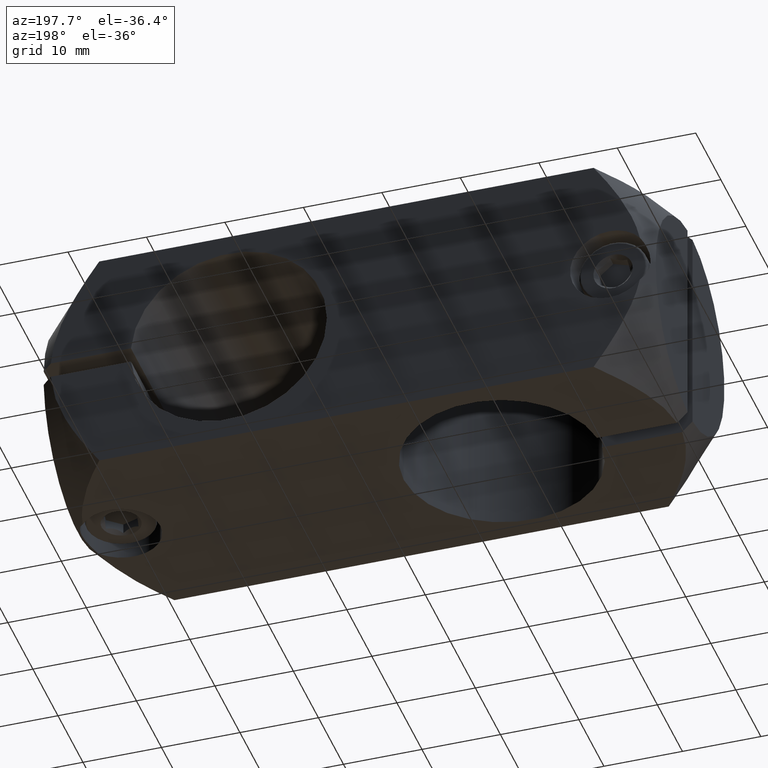
[diagram: clean part render]
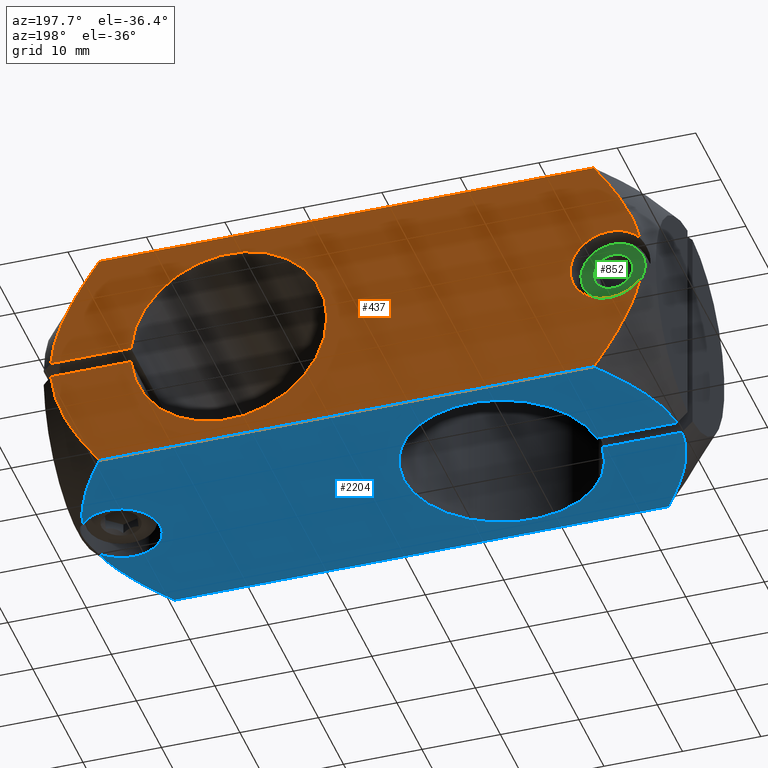
[diagram: same view with three faces highlighted in distinct colors, each labeled with its STEP entity id]
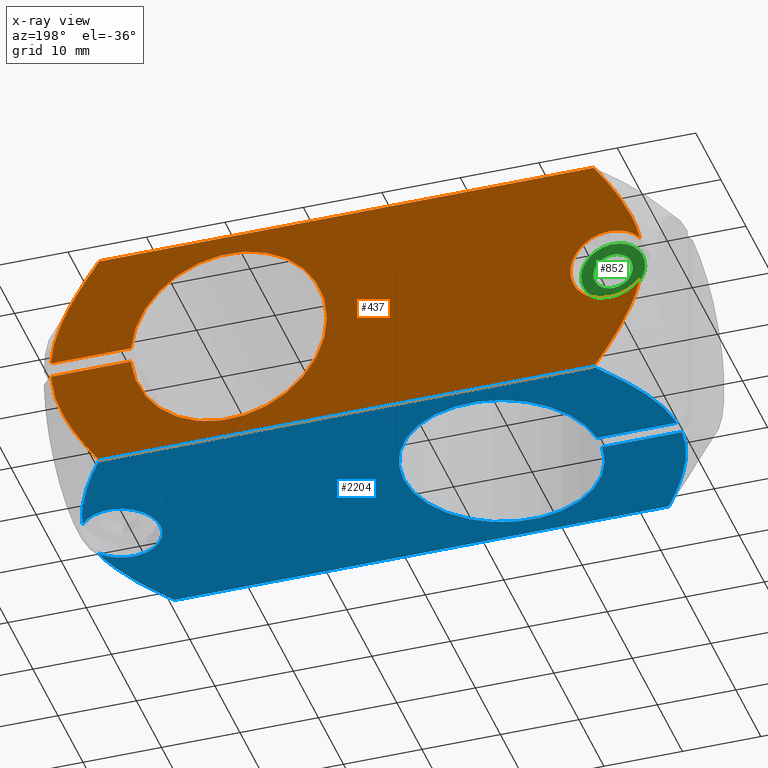
[diagram: x-ray of the same camera — body ghosted, the three highlighted faces saturated]
A machine part, auxiliary view with three faces highlighted in distinct colors.
The next image is the same camera in x-ray (body ghosted, the three faces saturated) — at least one of them is partly hidden behind the body in this view.
Their STEP definitions:

[orange] entity #437 — the highlighted planar face has unit normal (0, -1, 0).
#32 = DIRECTION ( 'NONE',  ( -1.000000000000000000, -6.938893903907225912E-17, 0.000000000000000000 ) ) ;
#40 = CARTESIAN_POINT ( 'NONE',  ( 45.85589075000393677, 6.510306479506766664, 79.16369555892572407 ) ) ;
#54 = CARTESIAN_POINT ( 'NONE',  ( 33.39595495562682004, 6.510306479506766664, 78.16369555892570986 ) ) ;
#55 = VERTEX_POINT ( 'NONE', #1941 ) ;
#76 = B_SPLINE_CURVE_WITH_KNOTS ( 'NONE', 3,
 ( #862, #625, #346, #107, #1809, #701, #1544, #1489, #1380, #2188, #2238, #307, #1720, #968, #2176, #1890 ),
 .UNSPECIFIED., .F., .F.,
 ( 4, 2, 2, 2, 2, 2, 2, 4 ),
 ( 0.04116296883264594642, 0.04502618197910741860, 0.04695778855233815469, 0.04888939512556888384, 0.05275260827203032132, 0.05468421484526102966, 0.05565001813187638730, 0.05661582141849174493 ),
 .UNSPECIFIED. ) ;
#78 = CARTESIAN_POINT ( 'NONE',  ( 54.48519777543878462, 6.510306479506767552, 70.92607441412667413 ) ) ;
#86 = CARTESIAN_POINT ( 'NONE',  ( 52.69798542986006851, 6.510306479506768440, 67.47767183124490487 ) ) ;
#99 = CARTESIAN_POINT ( 'NONE',  ( -15.10404504437317463, 6.510306479506761335, 78.16369555892570986 ) ) ;
#102 = CARTESIAN_POINT ( 'NONE',  ( 84.30742817214121487, 6.510306479506770216, 79.16369555892572407 ) ) ;
#107 = CARTESIAN_POINT ( 'NONE',  ( 52.37251348054765998, 6.510306479506768440, 89.39971300138027743 ) ) ;
#125 = CARTESIAN_POINT ( 'NONE',  ( -18.76599072099584120, 6.510306479506757782, 73.92171651542410871 ) ) ;
#142 = ORIENTED_EDGE ( 'NONE', *, *, #868, .F. ) ;
#165 = ORIENTED_EDGE ( 'NONE', *, *, #339, .T. ) ;
#175 = CARTESIAN_POINT ( 'NONE',  ( 45.85589075000393677, 6.510306479506768440, 77.16369555892570986 ) ) ;
#182 = DIRECTION ( 'NONE',  ( 8.896017825522089339E-17, -1.000000000000000000, 0.000000000000000000 ) ) ;
#250 = CARTESIAN_POINT ( 'NONE',  ( 56.07586201285034377, 6.510306479506768440, 77.16369555892570986 ) ) ;
#260 = CARTESIAN_POINT ( 'NONE',  ( 52.36903209050623786, 6.510306479506767552, 66.92189509412827420 ) ) ;
#281 = CIRCLE ( 'NONE', #2034, 12.50000000000000355 ) ;
#290 = ORIENTED_EDGE ( 'NONE', *, *, #1085, .T. ) ;
#307 = CARTESIAN_POINT ( 'NONE',  ( 55.88647056016522896, 6.510306479506765776, 80.77689576606574917 ) ) ;
#309 = LINE ( 'NONE', #1353, #938 ) ;
#313 = CARTESIAN_POINT ( 'NONE',  ( -16.37872651468642360, 6.510306479506761335, 68.31657957350795130 ) ) ;
#339 = EDGE_CURVE ( 'NONE', #1164, #2116, #1915, .T. ) ;
#346 = CARTESIAN_POINT ( 'NONE',  ( 51.35539366424504237, 6.510306479506767552, 91.04609140451289306 ) ) ;
#368 = CARTESIAN_POINT ( 'NONE',  ( -20.60404504437317286, 6.510306479506761335, 63.16369555892571697 ) ) ;
#393 = ORIENTED_EDGE ( 'NONE', *, *, #887, .F. ) ;
#410 = CARTESIAN_POINT ( 'NONE',  ( 53.63398190521613884, 6.510306479506766664, 69.18379764540695476 ) ) ;
#437 = ADVANCED_FACE ( 'NONE', ( #2216 ), #1214, .F. ) ;
#444 = EDGE_CURVE ( 'NONE', #2116, #1555, #988, .T. ) ;
#456 = CARTESIAN_POINT ( 'NONE',  ( -15.10404504437317463, 6.510306479506761335, 78.16369555892570986 ) ) ;
#457 = CARTESIAN_POINT ( 'NONE',  ( -18.43534865105120346, 6.510306479506762223, 83.46838863784014961 ) ) ;
#461 = CARTESIAN_POINT ( 'NONE',  ( -18.43678742632595302, 6.510306479506761335, 72.86351072992040656 ) ) ;
#462 = AXIS2_PLACEMENT_3D ( 'NONE', #1895, #182, #1838 ) ;
#468 = DIRECTION ( 'NONE',  ( 0.000000000000000000, 0.000000000000000000, 1.000000000000000000 ) ) ;
#469 = CARTESIAN_POINT ( 'NONE',  ( -14.36091340753621459, 6.510306479506762223, 91.34632725790081054 ) ) ;
#497 = CARTESIAN_POINT ( 'NONE',  ( -16.10551999594390438, 6.510306479506763111, 67.82836311522071071 ) ) ;
#503 = VERTEX_POINT ( 'NONE', #810 ) ;
#515 = EDGE_CURVE ( 'NONE', #1696, #55, #2180, .T. ) ;
#517 = CARTESIAN_POINT ( 'NONE',  ( -13.10404504437318707, 6.510306479506747124, 63.16369555892567433 ) ) ;
#569 = CARTESIAN_POINT ( 'NONE',  ( 20.89595495562681293, 6.510306479506765776, 78.16369555892570986 ) ) ;
#587 = VECTOR ( 'NONE', #937, 1000.000000000000000 ) ;
#611 = CARTESIAN_POINT ( 'NONE',  ( -15.10404504437317463, 6.510306479506761335, 73.16369555892570986 ) ) ;
#625 = CARTESIAN_POINT ( 'NONE',  ( 50.63806224415586144, 6.510306479506768440, 92.11419736675202330 ) ) ;
#635 = CARTESIAN_POINT ( 'NONE',  ( -13.74158508578211624, 6.510306479506759558, 92.26207778580932484 ) ) ;
#668 = CARTESIAN_POINT ( 'NONE',  ( -18.99110102534969258, 6.510306479506761335, 81.30865912004287566 ) ) ;
#675 = CARTESIAN_POINT ( 'NONE',  ( -15.54319166352470560, 6.510306479506761335, 66.86691496916786548 ) ) ;
#701 = CARTESIAN_POINT ( 'NONE',  ( 53.33429690043664806, 6.510306479506770216, 87.71177452364459270 ) ) ;
#702 = VERTEX_POINT ( 'NONE', #1799 ) ;
#775 = CARTESIAN_POINT ( 'NONE',  ( 51.35278296174561774, 6.510306479506769328, 65.27737157555318959 ) ) ;
#792 = ORIENTED_EDGE ( 'NONE', *, *, #1322, .F. ) ;
#795 = CARTESIAN_POINT ( 'NONE',  ( 49.89595495562682714, 6.510306479506768440, 63.16369555892571697 ) ) ;
#810 = CARTESIAN_POINT ( 'NONE',  ( -15.10404504437317463, 6.510306479506761335, 83.16369555892572407 ) ) ;
#822 = VECTOR ( 'NONE', #845, 1000.000000000000000 ) ;
#842 = DIRECTION ( 'NONE',  ( -0.000000000000000000, 1.000000000000000000, -0.000000000000000000 ) ) ;
#845 = DIRECTION ( 'NONE',  ( 1.000000000000000000, 6.446036833510411551E-17, -0.000000000000000000 ) ) ;
#862 = CARTESIAN_POINT ( 'NONE',  ( 49.89595495562682714, 6.510306479506772881, 93.16369555892570986 ) ) ;
#868 = EDGE_CURVE ( 'NONE', #1126, #1555, #1582, .T. ) ;
#887 = EDGE_CURVE ( 'NONE', #1370, #1642, #309, .T. ) ;
#889 = CARTESIAN_POINT ( 'NONE',  ( 49.89595495562682714, 6.510306479506772881, 93.16369555892570986 ) ) ;
#925 = CARTESIAN_POINT ( 'NONE',  ( 55.54409103327763120, 6.510306479506768440, 73.96650961431318194 ) ) ;
#937 = DIRECTION ( 'NONE',  ( -1.000000000000000000, -6.446036833510411551E-17, 0.000000000000000000 ) ) ;
#938 = VECTOR ( 'NONE', #2003, 1000.000000000000000 ) ;
#947 = CARTESIAN_POINT ( 'NONE',  ( 50.63656171396159777, 6.510306479506767552, 64.21107168094791007 ) ) ;
#968 = CARTESIAN_POINT ( 'NONE',  ( 56.02266264457779243, 6.510306479506768440, 79.80825526553879001 ) ) ;
#969 = CARTESIAN_POINT ( 'NONE',  ( -15.53883555133840666, 6.510306479506762223, 89.46769469511831119 ) ) ;
#985 = CARTESIAN_POINT ( 'NONE',  ( -15.25349678335482118, 6.510306479506761335, 66.39259783861662356 ) ) ;
#988 = B_SPLINE_CURVE_WITH_KNOTS ( 'NONE', 3,
 ( #1021, #1685, #1675, #985, #675, #497, #313, #2219, #2018, #461, #125, #1694 ),
 .UNSPECIFIED., .F., .F.,
 ( 4, 2, 2, 2, 2, 4 ),
 ( 0.04116296883264589784, 0.04448987012766948690, 0.04615332077518127796, 0.04781677142269306902, 0.05114367271771669277, 0.05447057401274032346 ),
 .UNSPECIFIED. ) ;
#993 = CARTESIAN_POINT ( 'NONE',  ( -17.63148278925583767, 6.510306479506761335, 85.53389251498363421 ) ) ;
#1002 = DIRECTION ( 'NONE',  ( -0.000000000000000000, 1.000000000000000000, -0.000000000000000000 ) ) ;
#1021 = CARTESIAN_POINT ( 'NONE',  ( -13.10404504437318707, 6.510306479506747124, 63.16369555892567433 ) ) ;
#1065 = DIRECTION ( 'NONE',  ( -1.000000000000000000, -8.896017825522088106E-17, -0.000000000000000000 ) ) ;
#1077 = DIRECTION ( 'NONE',  ( -1.000000000000000000, -6.938893903907225912E-17, 0.000000000000000000 ) ) ;
#1085 = EDGE_CURVE ( 'NONE', #1870, #1164, #1950, .T. ) ;
#1087 = DIRECTION ( 'NONE',  ( 0.000000000000000000, 0.000000000000000000, 1.000000000000000000 ) ) ;
#1102 = CARTESIAN_POINT ( 'NONE',  ( 54.97852243235129066, 6.510306479506768440, 72.11575306393393703 ) ) ;
#1103 = LINE ( 'NONE', #1778, #587 ) ;
#1120 = ORIENTED_EDGE ( 'NONE', *, *, #444, .T. ) ;
#1126 = VERTEX_POINT ( 'NONE', #611 ) ;
#1128 = AXIS2_PLACEMENT_3D ( 'NONE', #1740, #1219, #1087 ) ;
#1132 = AXIS2_PLACEMENT_3D ( 'NONE', #1244, #1927, #1077 ) ;
#1164 = VERTEX_POINT ( 'NONE', #795 ) ;
#1171 = CIRCLE ( 'NONE', #1132, 12.50000000000000355 ) ;
#1173 = EDGE_CURVE ( 'NONE', #1370, #55, #76, .T. ) ;
#1199 = ORIENTED_EDGE ( 'NONE', *, *, #515, .F. ) ;
#1207 = ORIENTED_EDGE ( 'NONE', *, *, #1211, .F. ) ;
#1211 = EDGE_CURVE ( 'NONE', #503, #1126, #1718, .T. ) ;
#1214 = PLANE ( 'NONE',  #462 ) ;
#1219 = DIRECTION ( 'NONE',  ( -0.000000000000000000, 1.000000000000000000, -0.000000000000000000 ) ) ;
#1244 = CARTESIAN_POINT ( 'NONE',  ( 33.39595495562682004, 6.510306479506766664, 78.16369555892570986 ) ) ;
#1258 = VECTOR ( 'NONE', #1065, 1000.000000000000000 ) ;
#1278 = EDGE_LOOP ( 'NONE', ( #393, #1289, #1199, #2169, #792, #2142, #290, #165, #1120, #142, #1207, #1569, #1336 ) ) ;
#1281 = VERTEX_POINT ( 'NONE', #569 ) ;
#1289 = ORIENTED_EDGE ( 'NONE', *, *, #1173, .T. ) ;
#1295 = CARTESIAN_POINT ( 'NONE',  ( 56.03309648477216598, 6.510306479506770216, 76.52078870054870663 ) ) ;
#1322 = EDGE_CURVE ( 'NONE', #1665, #1281, #281, .T. ) ;
#1336 = ORIENTED_EDGE ( 'NONE', *, *, #2228, .T. ) ;
#1353 = CARTESIAN_POINT ( 'NONE',  ( -20.60404504437317286, 6.510306479506761335, 93.16369555892570986 ) ) ;
#1359 = CARTESIAN_POINT ( 'NONE',  ( -15.24945766769410405, 6.510306479506762223, 89.94131262298397189 ) ) ;
#1370 = VERTEX_POINT ( 'NONE', #889 ) ;
#1378 = EDGE_CURVE ( 'NONE', #1281, #1696, #1171, .T. ) ;
#1380 = CARTESIAN_POINT ( 'NONE',  ( 54.97905242654898927, 6.510306479506768440, 84.20970320086311744 ) ) ;
#1420 = CIRCLE ( 'NONE', #1128, 5.000000000000004441 ) ;
#1441 = CARTESIAN_POINT ( 'NONE',  ( 49.89595495562682714, 6.510306479506768440, 63.16369555892571697 ) ) ;
#1449 = B_SPLINE_CURVE_WITH_KNOTS ( 'NONE', 3,
 ( #668, #2163, #457, #993, #2177, #2025, #1859, #969, #1359, #469, #635, #1691 ),
 .UNSPECIFIED., .F., .F.,
 ( 4, 2, 2, 2, 2, 4 ),
 ( 0.06076437033314729258, 0.06408725333673301328, 0.06741013634031872703, 0.06907157784211158391, 0.07073301934390444079, 0.07405590234749016842 ),
 .UNSPECIFIED. ) ;
#1489 = CARTESIAN_POINT ( 'NONE',  ( 54.48679692087270610, 6.510306479506767552, 85.39749089162594942 ) ) ;
#1523 = DIRECTION ( 'NONE',  ( 0.000000000000000000, 0.000000000000000000, 1.000000000000000000 ) ) ;
#1544 = CARTESIAN_POINT ( 'NONE',  ( 53.63702362177380678, 6.510306479506767552, 87.13764212205526860 ) ) ;
#1555 = VERTEX_POINT ( 'NONE', #1686 ) ;
#1569 = ORIENTED_EDGE ( 'NONE', *, *, #1753, .F. ) ;
#1582 = CIRCLE ( 'NONE', #1903, 5.000000000000004441 ) ;
#1641 = CARTESIAN_POINT ( 'NONE',  ( 56.07586201285034377, 6.510306479506768440, 77.16369555892570986 ) ) ;
#1642 = VERTEX_POINT ( 'NONE', #1877 ) ;
#1665 = VERTEX_POINT ( 'NONE', #175 ) ;
#1675 = CARTESIAN_POINT ( 'NONE',  ( -14.36369766112790991, 6.510306479506764887, 64.98520393645139848 ) ) ;
#1685 = CARTESIAN_POINT ( 'NONE',  ( -13.74312904146382941, 6.510306479506763111, 64.06749681510690664 ) ) ;
#1686 = CARTESIAN_POINT ( 'NONE',  ( -18.99110102534962863, 6.510306479506757782, 75.01873199780848722 ) ) ;
#1691 = CARTESIAN_POINT ( 'NONE',  ( -13.10404504437319417, 6.510306479506788868, 93.16369555892569565 ) ) ;
#1694 = CARTESIAN_POINT ( 'NONE',  ( -18.99110102534962863, 6.510306479506757782, 75.01873199780848722 ) ) ;
#1696 = VERTEX_POINT ( 'NONE', #40 ) ;
#1718 = CIRCLE ( 'NONE', #1825, 5.000000000000004441 ) ;
#1720 = CARTESIAN_POINT ( 'NONE',  ( 55.93880914486299361, 6.510306479506767552, 80.45317562470633277 ) ) ;
#1740 = CARTESIAN_POINT ( 'NONE',  ( -15.10404504437317463, 6.510306479506761335, 78.16369555892570986 ) ) ;
#1753 = EDGE_CURVE ( 'NONE', #702, #503, #1420, .T. ) ;
#1777 = CARTESIAN_POINT ( 'NONE',  ( 53.33063826799010343, 6.510306479506767552, 68.60882292411099570 ) ) ;
#1778 = CARTESIAN_POINT ( 'NONE',  ( 84.30742817214121487, 6.510306479506770216, 77.16369555892570986 ) ) ;
#1799 = CARTESIAN_POINT ( 'NONE',  ( -18.99110102534969258, 6.510306479506761335, 81.30865912004287566 ) ) ;
#1809 = CARTESIAN_POINT ( 'NONE',  ( 52.70162410621977500, 6.510306479506766664, 88.84346284821792494 ) ) ;
#1825 = AXIS2_PLACEMENT_3D ( 'NONE', #456, #1002, #468 ) ;
#1838 = DIRECTION ( 'NONE',  ( 1.000000000000000000, 8.896017825522089339E-17, 0.000000000000000000 ) ) ;
#1859 = CARTESIAN_POINT ( 'NONE',  ( -16.10075792261363858, 6.510306479506760446, 88.50739569858066602 ) ) ;
#1870 = VERTEX_POINT ( 'NONE', #1641 ) ;
#1877 = CARTESIAN_POINT ( 'NONE',  ( -13.10404504437319417, 6.510306479506788868, 93.16369555892569565 ) ) ;
#1890 = CARTESIAN_POINT ( 'NONE',  ( 56.07586201285034377, 6.510306479506768440, 79.16369555892572407 ) ) ;
#1895 = CARTESIAN_POINT ( 'NONE',  ( -20.60404504437317286, 6.510306479506761335, 93.16369555892570986 ) ) ;
#1903 = AXIS2_PLACEMENT_3D ( 'NONE', #99, #842, #1523 ) ;
#1915 = LINE ( 'NONE', #368, #1258 ) ;
#1927 = DIRECTION ( 'NONE',  ( -8.896017825522089339E-17, 1.000000000000000000, 0.000000000000000000 ) ) ;
#1941 = CARTESIAN_POINT ( 'NONE',  ( 56.07586201285034377, 6.510306479506768440, 79.16369555892572407 ) ) ;
#1950 = B_SPLINE_CURVE_WITH_KNOTS ( 'NONE', 3,
 ( #250, #1295, #2103, #2137, #925, #1102, #78, #410, #1777, #86, #260, #775, #947, #1441 ),
 .UNSPECIFIED., .F., .F.,
 ( 4, 2, 2, 2, 2, 2, 4 ),
 ( 0.05861561970000152277, 0.06054565503093758960, 0.06247569036187365643, 0.06633576102374583172, 0.06826579635468191243, 0.07019583168561799313, 0.07405590234749019618 ),
 .UNSPECIFIED. ) ;
#2003 = DIRECTION ( 'NONE',  ( -1.000000000000000000, -8.896017825522088106E-17, -0.000000000000000000 ) ) ;
#2018 = CARTESIAN_POINT ( 'NONE',  ( -17.63460154936985802, 6.510306479506762223, 70.80070536768043610 ) ) ;
#2025 = CARTESIAN_POINT ( 'NONE',  ( -16.37381883603491417, 6.510306479506763111, 88.01975492126672407 ) ) ;
#2034 = AXIS2_PLACEMENT_3D ( 'NONE', #54, #2089, #32 ) ;
#2089 = DIRECTION ( 'NONE',  ( -8.896017825522089339E-17, 1.000000000000000000, 0.000000000000000000 ) ) ;
#2103 = CARTESIAN_POINT ( 'NONE',  ( 55.94912806119823045, 6.510306479506768440, 75.87823096940428513 ) ) ;
#2116 = VERTEX_POINT ( 'NONE', #517 ) ;
#2137 = CARTESIAN_POINT ( 'NONE',  ( 55.70325763255742402, 6.510306479506768440, 74.59457704470717943 ) ) ;
#2142 = ORIENTED_EDGE ( 'NONE', *, *, #2203, .F. ) ;
#2163 = CARTESIAN_POINT ( 'NONE',  ( -18.76544092376863304, 6.510306479506762223, 82.40835389368490382 ) ) ;
#2169 = ORIENTED_EDGE ( 'NONE', *, *, #1378, .F. ) ;
#2176 = CARTESIAN_POINT ( 'NONE',  ( 56.05442831885576993, 6.510306479506769328, 79.48591463322942730 ) ) ;
#2177 = CARTESIAN_POINT ( 'NONE',  ( -17.15768365806060913, 6.510306479506763111, 86.53935194788502372 ) ) ;
#2180 = LINE ( 'NONE', #102, #822 ) ;
#2188 = CARTESIAN_POINT ( 'NONE',  ( 55.54342968818577475, 6.510306479506769328, 82.36314582655019478 ) ) ;
#2203 = EDGE_CURVE ( 'NONE', #1870, #1665, #1103, .T. ) ;
#2216 = FACE_OUTER_BOUND ( 'NONE', #1278, .T. ) ;
#2219 = CARTESIAN_POINT ( 'NONE',  ( -17.16160804702820286, 6.510306479506761335, 69.79610986234257552 ) ) ;
#2228 = EDGE_CURVE ( 'NONE', #702, #1642, #1449, .T. ) ;
#2238 = CARTESIAN_POINT ( 'NONE',  ( 55.70227459993387953, 6.510306479506767552, 81.73670972644727328 ) ) ;

[blue] entity #2204 — the highlighted planar face has unit normal (-0, 0, 1).
#5 = CARTESIAN_POINT ( 'NONE',  ( 46.89595495562682714, -8.489693520493242218, 63.16369555892571697 ) ) ;
#46 = VERTEX_POINT ( 'NONE', #1568 ) ;
#60 = EDGE_CURVE ( 'NONE', #736, #555, #1269, .T. ) ;
#68 = CARTESIAN_POINT ( 'NONE',  ( -18.18662102592009333, -2.441772961975631873, 63.16369555892571697 ) ) ;
#71 = CARTESIAN_POINT ( 'NONE',  ( -19.23075643469382001, -10.13421942971678646, 63.16369555892573118 ) ) ;
#77 = VERTEX_POINT ( 'NONE', #384 ) ;
#94 = ORIENTED_EDGE ( 'NONE', *, *, #131, .F. ) ;
#101 = EDGE_CURVE ( 'NONE', #1164, #1975, #438, .T. ) ;
#121 = DIRECTION ( 'NONE',  ( 0.000000000000000000, -0.000000000000000000, -1.000000000000000000 ) ) ;
#131 = EDGE_CURVE ( 'NONE', #479, #46, #1162, .T. ) ;
#162 = CARTESIAN_POINT ( 'NONE',  ( 55.22725856230481867, -13.79438659940770862, 63.16369555892571697 ) ) ;
#177 = CARTESIAN_POINT ( 'NONE',  ( 52.89266783386723603, -18.83339366014823213, 63.16369555892573118 ) ) ;
#191 = ORIENTED_EDGE ( 'NONE', *, *, #101, .T. ) ;
#201 = CARTESIAN_POINT ( 'NONE',  ( 52.89742990719751248, 1.845638923211786464, 63.16369555892573118 ) ) ;
#214 = ORIENTED_EDGE ( 'NONE', *, *, #1248, .F. ) ;
#217 = CARTESIAN_POINT ( 'NONE',  ( -15.57712750612741814, 2.752098108256771702, 63.16369555892574539 ) ) ;
#244 = CARTESIAN_POINT ( 'NONE',  ( -19.28395444628326771, -9.489658271507050102, 63.16369555892571697 ) ) ;
#249 = AXIS2_PLACEMENT_3D ( 'NONE', #1621, #1122, #422 ) ;
#253 = CARTESIAN_POINT ( 'NONE',  ( -18.18715098107058381, -14.53567931633557642, 63.16369555892573118 ) ) ;
#254 = ORIENTED_EDGE ( 'NONE', *, *, #298, .T. ) ;
#262 = CARTESIAN_POINT ( 'NONE',  ( -19.28395444628326771, -7.489728769479425452, 63.16369555892571697 ) ) ;
#263 = DIRECTION ( 'NONE',  ( -1.000000000000000000, 0.000000000000000000, 0.000000000000000000 ) ) ;
#298 = EDGE_CURVE ( 'NONE', #2174, #46, #1597, .T. ) ;
#339 = EDGE_CURVE ( 'NONE', #1164, #2116, #1915, .T. ) ;
#347 = VERTEX_POINT ( 'NONE', #244 ) ;
#368 = CARTESIAN_POINT ( 'NONE',  ( -20.60404504437317286, 6.510306479506761335, 63.16369555892571697 ) ) ;
#372 = AXIS2_PLACEMENT_3D ( 'NONE', #2147, #1969, #263 ) ;
#380 = CARTESIAN_POINT ( 'NONE',  ( -13.10404504437317996, -23.48969352049323334, 63.16369555892567433 ) ) ;
#384 = CARTESIAN_POINT ( 'NONE',  ( 15.89595495562682181, -8.489693520493240442, 63.16369555892571697 ) ) ;
#387 = CARTESIAN_POINT ( 'NONE',  ( -15.90608147390454263, 2.196320005978627865, 63.16369555892574539 ) ) ;
#418 = ORIENTED_EDGE ( 'NONE', *, *, #60, .F. ) ;
#422 = DIRECTION ( 'NONE',  ( 1.000000000000000000, 0.000000000000000000, 0.000000000000000000 ) ) ;
#438 = B_SPLINE_CURVE_WITH_KNOTS ( 'NONE', 3,
 ( #548, #1067, #746, #712, #1745, #201, #735, #1079, #2113, #570, #898, #1580 ),
 .UNSPECIFIED., .F., .F.,
 ( 4, 2, 2, 2, 2, 4 ),
 ( 0.04116296883264595335, 0.04448987012766952159, 0.04615332077518131265, 0.04781677142269310371, 0.05114367271771669970, 0.05447057401274028876 ),
 .UNSPECIFIED. ) ;
#464 = ORIENTED_EDGE ( 'NONE', *, *, #1866, .F. ) ;
#479 = VERTEX_POINT ( 'NONE', #508 ) ;
#508 = CARTESIAN_POINT ( 'NONE',  ( -13.10404504437317996, -23.48969352049323334, 63.16369555892567433 ) ) ;
#517 = CARTESIAN_POINT ( 'NONE',  ( -13.10404504437318707, 6.510306479506747124, 63.16369555892567433 ) ) ;
#537 = VECTOR ( 'NONE', #1840, 1000.000000000000000 ) ;
#546 = CARTESIAN_POINT ( 'NONE',  ( 53.94959356931420302, -16.86534990945257206, 63.16369555892571697 ) ) ;
#548 = CARTESIAN_POINT ( 'NONE',  ( 49.89595495562682714, 6.510306479506768440, 63.16369555892571697 ) ) ;
#555 = VERTEX_POINT ( 'NONE', #1052 ) ;
#562 = CARTESIAN_POINT ( 'NONE',  ( -19.24119032010972674, -6.846820424751531853, 63.16369555892573118 ) ) ;
#570 = CARTESIAN_POINT ( 'NONE',  ( 55.22869733757957533, -3.189508691487900727, 63.16369555892573118 ) ) ;
#590 = DIRECTION ( 'NONE',  ( 1.000000000000000000, 0.000000000000000000, 0.000000000000000000 ) ) ;
#639 = CARTESIAN_POINT ( 'NONE',  ( 55.78301093660324028, -5.344729959375970729, 63.16369555892571697 ) ) ;
#685 = CARTESIAN_POINT ( 'NONE',  ( -44.57811922938638105, -9.489658271507050102, 63.16369555892571697 ) ) ;
#693 = CIRCLE ( 'NONE', #1938, 12.50000000000000000 ) ;
#712 = CARTESIAN_POINT ( 'NONE',  ( 52.04540669460845947, 3.281404199815836531, 63.16369555892573118 ) ) ;
#735 = CARTESIAN_POINT ( 'NONE',  ( 53.17063642594003881, 1.357422464924541439, 63.16369555892570276 ) ) ;
#736 = VERTEX_POINT ( 'NONE', #262 ) ;
#743 = CARTESIAN_POINT ( 'NONE',  ( 51.15282331878982802, -21.67232521946837309, 63.16369555892573118 ) ) ;
#746 = CARTESIAN_POINT ( 'NONE',  ( 51.15560757238154821, 4.688798101981082489, 63.16369555892573118 ) ) ;
#768 = CARTESIAN_POINT ( 'NONE',  ( -16.84207946947951839, 0.4901899301338076831, 63.16369555892575960 ) ) ;
#789 = CARTESIAN_POINT ( 'NONE',  ( -16.84512115654324305, -17.46362567059148319, 63.16369555892573118 ) ) ;
#795 = CARTESIAN_POINT ( 'NONE',  ( 49.89595495562682714, 6.510306479506768440, 63.16369555892571697 ) ) ;
#797 = CARTESIAN_POINT ( 'NONE',  ( -18.75152712022383739, -12.68911683556057035, 63.16369555892571697 ) ) ;
#864 = ORIENTED_EDGE ( 'NONE', *, *, #1092, .F. ) ;
#876 = CARTESIAN_POINT ( 'NONE',  ( 50.53349499703575276, -22.58807574737684831, 63.16369555892571697 ) ) ;
#898 = CARTESIAN_POINT ( 'NONE',  ( 55.55790063224945641, -4.247714476991588661, 63.16369555892571697 ) ) ;
#909 = DIRECTION ( 'NONE',  ( 1.000000000000000000, 0.000000000000000000, 0.000000000000000000 ) ) ;
#912 = CARTESIAN_POINT ( 'NONE',  ( -13.84465349460915284, 5.462927964774953793, 63.16369555892570276 ) ) ;
#933 = B_SPLINE_CURVE_WITH_KNOTS ( 'NONE', 3,
 ( #1417, #562, #1249, #1620, #1083, #68, #1930, #768, #1451, #387, #217, #1429, #912, #1594 ),
 .UNSPECIFIED., .F., .F.,
 ( 4, 2, 2, 2, 2, 2, 4 ),
 ( 0.05861558442698756866, 0.06054562416705040057, 0.06247566390711323248, 0.06633574338723889630, 0.06826578312730172127, 0.07019582286736454624, 0.07405590234749021006 ),
 .UNSPECIFIED. ) ;
#935 = DIRECTION ( 'NONE',  ( -0.000000000000000000, -0.000000000000000000, -1.000000000000000000 ) ) ;
#956 = CARTESIAN_POINT ( 'NONE',  ( 51.89595495562682004, -8.489693520493242218, 63.16369555892571697 ) ) ;
#976 = AXIS2_PLACEMENT_3D ( 'NONE', #1671, #121, #1478 ) ;
#998 = DIRECTION ( 'NONE',  ( -1.000000000000000000, 0.000000000000000000, 0.000000000000000000 ) ) ;
#1052 = CARTESIAN_POINT ( 'NONE',  ( -9.063983667686292378, -7.489728769479425452, 63.16369555892571697 ) ) ;
#1065 = DIRECTION ( 'NONE',  ( -1.000000000000000000, -8.896017825522088106E-17, -0.000000000000000000 ) ) ;
#1067 = CARTESIAN_POINT ( 'NONE',  ( 50.53503895271744994, 5.606505223325572551, 63.16369555892570276 ) ) ;
#1079 = CARTESIAN_POINT ( 'NONE',  ( 53.95351795828182162, -0.1221078239100963914, 63.16369555892574539 ) ) ;
#1083 = CARTESIAN_POINT ( 'NONE',  ( -18.75218849785836639, -4.292534659796817920, 63.16369555892573118 ) ) ;
#1091 = VERTEX_POINT ( 'NONE', #1978 ) ;
#1092 = EDGE_CURVE ( 'NONE', #555, #77, #693, .T. ) ;
#1114 = EDGE_CURVE ( 'NONE', #2174, #1717, #2229, .T. ) ;
#1116 = CARTESIAN_POINT ( 'NONE',  ( -17.69489535768492416, -15.72347008851798122, 63.16369555892571697 ) ) ;
#1122 = DIRECTION ( 'NONE',  ( -0.000000000000000000, 0.000000000000000000, 1.000000000000000000 ) ) ;
#1134 = CARTESIAN_POINT ( 'NONE',  ( -18.91037143832027922, -12.06267895146950941, 63.16369555892571697 ) ) ;
#1137 = EDGE_CURVE ( 'NONE', #736, #2116, #933, .T. ) ;
#1162 = LINE ( 'NONE', #1198, #537 ) ;
#1164 = VERTEX_POINT ( 'NONE', #795 ) ;
#1198 = CARTESIAN_POINT ( 'NONE',  ( -20.60404504437315865, -23.48969352049323689, 63.16369555892571697 ) ) ;
#1208 = CARTESIAN_POINT ( 'NONE',  ( 55.78301093660330423, -11.63465708161043288, 63.16369555892571697 ) ) ;
#1234 = CARTESIAN_POINT ( 'NONE',  ( 49.89595495562682714, -23.48969352049323689, 63.16369555892573118 ) ) ;
#1243 = CARTESIAN_POINT ( 'NONE',  ( 53.16572874728852582, -18.34575288283426886, 63.16369555892574539 ) ) ;
#1248 = EDGE_CURVE ( 'NONE', #77, #1091, #1440, .T. ) ;
#1249 = CARTESIAN_POINT ( 'NONE',  ( -19.15722316725750574, -6.204261629267696421, 63.16369555892570276 ) ) ;
#1252 = CARTESIAN_POINT ( 'NONE',  ( -14.56348702612061707, -21.37208450014082928, 63.16369555892573118 ) ) ;
#1258 = VECTOR ( 'NONE', #1065, 1000.000000000000000 ) ;
#1260 = AXIS2_PLACEMENT_3D ( 'NONE', #956, #935, #1759 ) ;
#1269 = LINE ( 'NONE', #1952, #2183 ) ;
#1272 = B_SPLINE_CURVE_WITH_KNOTS ( 'NONE', 3,
 ( #380, #1600, #1252, #1934, #1959, #1790, #789, #1116, #253, #797, #1134, #1472, #1800, #71, #1623, #2156 ),
 .UNSPECIFIED., .F., .F.,
 ( 4, 2, 2, 2, 2, 2, 2, 4 ),
 ( 0.04116296883264594642, 0.04502619078356940446, 0.04695780175903113696, 0.04888941273449286251, 0.05275263468541632750, 0.05468424566087806693, 0.05565005114860892971, 0.05661585663633979942 ),
 .UNSPECIFIED. ) ;
#1286 = PLANE ( 'NONE',  #249 ) ;
#1305 = CARTESIAN_POINT ( 'NONE',  ( 55.78301093660330423, -11.63465708161043288, 63.16369555892571697 ) ) ;
#1350 = CIRCLE ( 'NONE', #372, 4.999999999999997335 ) ;
#1413 = CARTESIAN_POINT ( 'NONE',  ( 55.55735083502225535, -12.73435185525246283, 63.16369555892573118 ) ) ;
#1415 = ORIENTED_EDGE ( 'NONE', *, *, #1638, .F. ) ;
#1417 = CARTESIAN_POINT ( 'NONE',  ( -19.28395444628326771, -7.489728769479425452, 63.16369555892571697 ) ) ;
#1423 = CARTESIAN_POINT ( 'NONE',  ( 52.33074546259200588, -19.79369265668584177, 63.16369555892570276 ) ) ;
#1429 = CARTESIAN_POINT ( 'NONE',  ( -14.56087632634422135, 4.396625593688066047, 63.16369555892574539 ) ) ;
#1440 = CIRCLE ( 'NONE', #976, 12.50000000000000000 ) ;
#1450 = EDGE_LOOP ( 'NONE', ( #2101, #191, #464, #1658, #254, #94, #1841, #1415, #214, #864, #418, #1592 ) ) ;
#1451 = CARTESIAN_POINT ( 'NONE',  ( -16.53873540897852124, 1.065166058701086493, 63.16369555892573118 ) ) ;
#1472 = CARTESIAN_POINT ( 'NONE',  ( -19.09456608968420710, -11.10286215911460950, 63.16369555892570276 ) ) ;
#1478 = DIRECTION ( 'NONE',  ( 1.000000000000000000, 0.000000000000000000, 0.000000000000000000 ) ) ;
#1568 = CARTESIAN_POINT ( 'NONE',  ( 49.89595495562682714, -23.48969352049323689, 63.16369555892573118 ) ) ;
#1577 = CARTESIAN_POINT ( 'NONE',  ( 54.42339270050944577, -15.85989047655116124, 63.16369555892571697 ) ) ;
#1580 = CARTESIAN_POINT ( 'NONE',  ( 55.78301093660324028, -5.344729959375970729, 63.16369555892571697 ) ) ;
#1590 = CARTESIAN_POINT ( 'NONE',  ( 52.04136757894769261, -20.26731058455151313, 63.16369555892570276 ) ) ;
#1592 = ORIENTED_EDGE ( 'NONE', *, *, #1137, .T. ) ;
#1594 = CARTESIAN_POINT ( 'NONE',  ( -13.10404504437318707, 6.510306479506747124, 63.16369555892567433 ) ) ;
#1597 = B_SPLINE_CURVE_WITH_KNOTS ( 'NONE', 3,
 ( #1208, #1413, #162, #1577, #546, #1243, #177, #1423, #1590, #743, #876, #1234 ),
 .UNSPECIFIED., .F., .F.,
 ( 4, 2, 2, 2, 2, 4 ),
 ( 0.06076437033314735503, 0.06408725333673306879, 0.06741013634031878254, 0.06907157784211162554, 0.07073301934390448242, 0.07405590234749019618 ),
 .UNSPECIFIED. ) ;
#1600 = CARTESIAN_POINT ( 'NONE',  ( -13.84615402420302388, -22.44019293645905577, 63.16369555892573118 ) ) ;
#1604 = VECTOR ( 'NONE', #998, 1000.000000000000000 ) ;
#1620 = CARTESIAN_POINT ( 'NONE',  ( -18.91135449934182589, -4.920603890110927914, 63.16369555892571697 ) ) ;
#1621 = CARTESIAN_POINT ( 'NONE',  ( 18.39595495562682004, -8.489693520493238665, 63.16369555892571697 ) ) ;
#1623 = CARTESIAN_POINT ( 'NONE',  ( -19.26252145620419398, -9.811878071308221649, 63.16369555892574539 ) ) ;
#1628 = DIRECTION ( 'NONE',  ( 0.000000000000000000, -0.000000000000000000, -1.000000000000000000 ) ) ;
#1638 = EDGE_CURVE ( 'NONE', #1091, #347, #1839, .T. ) ;
#1639 = FACE_OUTER_BOUND ( 'NONE', #1450, .T. ) ;
#1658 = ORIENTED_EDGE ( 'NONE', *, *, #1114, .F. ) ;
#1671 = CARTESIAN_POINT ( 'NONE',  ( 3.395954955626820482, -8.489693520493240442, 63.16369555892571697 ) ) ;
#1717 = VERTEX_POINT ( 'NONE', #5 ) ;
#1745 = CARTESIAN_POINT ( 'NONE',  ( 52.33510157477832081, 2.807087069264610601, 63.16369555892570276 ) ) ;
#1759 = DIRECTION ( 'NONE',  ( -1.000000000000000000, 0.000000000000000000, 0.000000000000000000 ) ) ;
#1768 = EDGE_CURVE ( 'NONE', #479, #347, #1272, .T. ) ;
#1790 = CARTESIAN_POINT ( 'NONE',  ( -16.54239402288974858, -18.03775945732609642, 63.16369555892570276 ) ) ;
#1800 = CARTESIAN_POINT ( 'NONE',  ( -19.14690413195882002, -10.77914124235996951, 63.16369555892571697 ) ) ;
#1839 = LINE ( 'NONE', #685, #1604 ) ;
#1840 = DIRECTION ( 'NONE',  ( 1.000000000000000000, 0.000000000000000000, 0.000000000000000000 ) ) ;
#1841 = ORIENTED_EDGE ( 'NONE', *, *, #1768, .T. ) ;
#1866 = EDGE_CURVE ( 'NONE', #1717, #1975, #1350, .T. ) ;
#1915 = LINE ( 'NONE', #368, #1258 ) ;
#1930 = CARTESIAN_POINT ( 'NONE',  ( -17.69329624816262125, -1.252091212269413001, 63.16369555892571697 ) ) ;
#1934 = CARTESIAN_POINT ( 'NONE',  ( -15.58060888693409574, -19.72570213937301276, 63.16369555892571697 ) ) ;
#1938 = AXIS2_PLACEMENT_3D ( 'NONE', #2128, #1628, #590 ) ;
#1952 = CARTESIAN_POINT ( 'NONE',  ( -44.57811922938638105, -7.489728769479425452, 63.16369555892571697 ) ) ;
#1959 = CARTESIAN_POINT ( 'NONE',  ( -15.90972013830120169, -19.16945062508423803, 63.16369555892573118 ) ) ;
#1969 = DIRECTION ( 'NONE',  ( -0.000000000000000000, -0.000000000000000000, -1.000000000000000000 ) ) ;
#1975 = VERTEX_POINT ( 'NONE', #639 ) ;
#1978 = CARTESIAN_POINT ( 'NONE',  ( -9.063983667686292378, -9.489658271507050102, 63.16369555892571697 ) ) ;
#2101 = ORIENTED_EDGE ( 'NONE', *, *, #339, .F. ) ;
#2113 = CARTESIAN_POINT ( 'NONE',  ( 54.42651146062347323, -1.126703329247915386, 63.16369555892570276 ) ) ;
#2116 = VERTEX_POINT ( 'NONE', #517 ) ;
#2128 = CARTESIAN_POINT ( 'NONE',  ( 3.395954955626820482, -8.489693520493240442, 63.16369555892571697 ) ) ;
#2147 = CARTESIAN_POINT ( 'NONE',  ( 51.89595495562682004, -8.489693520493242218, 63.16369555892571697 ) ) ;
#2156 = CARTESIAN_POINT ( 'NONE',  ( -19.28395444628326771, -9.489658271507050102, 63.16369555892571697 ) ) ;
#2174 = VERTEX_POINT ( 'NONE', #1305 ) ;
#2183 = VECTOR ( 'NONE', #909, 1000.000000000000000 ) ;
#2204 = ADVANCED_FACE ( 'NONE', ( #1639 ), #1286, .F. ) ;
#2229 = CIRCLE ( 'NONE', #1260, 4.999999999999997335 ) ;

[green] entity #852 — the highlighted planar face has unit normal (0, 1, 0).
#6 = VERTEX_POINT ( 'NONE', #180 ) ;
#145 = FACE_BOUND ( 'NONE', #1165, .T. ) ;
#180 = CARTESIAN_POINT ( 'NONE',  ( -17.56269667583022098, 5.010306479506761335, 78.66581697767847459 ) ) ;
#267 = DIRECTION ( 'NONE',  ( 0.000000000000000000, 1.000000000000000000, 0.000000000000000000 ) ) ;
#277 = CIRCLE ( 'NONE', #1538, 2.509401076758502658 ) ;
#342 = DIRECTION ( 'NONE',  ( 0.000000000000000000, 1.000000000000000000, 0.000000000000000000 ) ) ;
#529 = DIRECTION ( 'NONE',  ( 0.9797762718078502076, 0.000000000000000000, -0.2000961199081821018 ) ) ;
#577 = CIRCLE ( 'NONE', #1439, 4.100000000000004086 ) ;
#582 = VERTEX_POINT ( 'NONE', #1387 ) ;
#602 = CIRCLE ( 'NONE', #1670, 2.509401076758502658 ) ;
#627 = EDGE_CURVE ( 'NONE', #582, #6, #277, .T. ) ;
#648 = CARTESIAN_POINT ( 'NONE',  ( -19.12112775878535587, 5.010306479506760446, 78.98408965054926512 ) ) ;
#673 = PLANE ( 'NONE',  #1113 ) ;
#800 = CARTESIAN_POINT ( 'NONE',  ( -15.10404504437316753, 5.010306479506761335, 78.16369555892569565 ) ) ;
#837 = ORIENTED_EDGE ( 'NONE', *, *, #1394, .F. ) ;
#852 = ADVANCED_FACE ( 'NONE', ( #1660, #145 ), #673, .T. ) ;
#955 = ORIENTED_EDGE ( 'NONE', *, *, #1041, .T. ) ;
#994 = DIRECTION ( 'NONE',  ( 0.9797762718078497635, 0.000000000000000000, -0.2000961199081843778 ) ) ;
#1041 = EDGE_CURVE ( 'NONE', #1976, #2023, #1650, .T. ) ;
#1093 = DIRECTION ( 'NONE',  ( 0.000000000000000000, 1.000000000000000000, 0.000000000000000000 ) ) ;
#1113 = AXIS2_PLACEMENT_3D ( 'NONE', #1331, #1156, #994 ) ;
#1156 = DIRECTION ( 'NONE',  ( 0.000000000000000000, 1.000000000000000000, 0.000000000000000000 ) ) ;
#1165 = EDGE_LOOP ( 'NONE', ( #1382, #837 ) ) ;
#1182 = EDGE_CURVE ( 'NONE', #2023, #1976, #577, .T. ) ;
#1326 = CARTESIAN_POINT ( 'NONE',  ( -15.10404504437316753, 5.010306479506761335, 78.16369555892569565 ) ) ;
#1331 = CARTESIAN_POINT ( 'NONE',  ( -15.10404504437316753, 5.010306479506761335, 78.16369555892569565 ) ) ;
#1341 = DIRECTION ( 'NONE',  ( 0.000000000000000000, 1.000000000000000000, 0.000000000000000000 ) ) ;
#1382 = ORIENTED_EDGE ( 'NONE', *, *, #627, .F. ) ;
#1387 = CARTESIAN_POINT ( 'NONE',  ( -12.64539341291611763, 5.010306479506761335, 77.66157414017290250 ) ) ;
#1394 = EDGE_CURVE ( 'NONE', #6, #582, #602, .T. ) ;
#1439 = AXIS2_PLACEMENT_3D ( 'NONE', #1326, #1341, #1466 ) ;
#1446 = DIRECTION ( 'NONE',  ( 0.9797762718078502076, 0.000000000000000000, -0.2000961199081821018 ) ) ;
#1466 = DIRECTION ( 'NONE',  ( 0.9797762718078496524, 0.000000000000000000, -0.2000961199081846831 ) ) ;
#1470 = AXIS2_PLACEMENT_3D ( 'NONE', #1909, #1093, #1609 ) ;
#1538 = AXIS2_PLACEMENT_3D ( 'NONE', #1886, #342, #529 ) ;
#1609 = DIRECTION ( 'NONE',  ( 0.9797762718078496524, 0.000000000000000000, -0.2000961199081846831 ) ) ;
#1650 = CIRCLE ( 'NONE', #1470, 4.100000000000004086 ) ;
#1660 = FACE_OUTER_BOUND ( 'NONE', #2223, .T. ) ;
#1670 = AXIS2_PLACEMENT_3D ( 'NONE', #800, #267, #1446 ) ;
#1725 = CARTESIAN_POINT ( 'NONE',  ( -11.08696232996098097, 5.010306479506760446, 77.34330146730212618 ) ) ;
#1886 = CARTESIAN_POINT ( 'NONE',  ( -15.10404504437316753, 5.010306479506761335, 78.16369555892569565 ) ) ;
#1909 = CARTESIAN_POINT ( 'NONE',  ( -15.10404504437316753, 5.010306479506761335, 78.16369555892569565 ) ) ;
#1976 = VERTEX_POINT ( 'NONE', #648 ) ;
#2023 = VERTEX_POINT ( 'NONE', #1725 ) ;
#2161 = ORIENTED_EDGE ( 'NONE', *, *, #1182, .T. ) ;
#2223 = EDGE_LOOP ( 'NONE', ( #2161, #955 ) ) ;